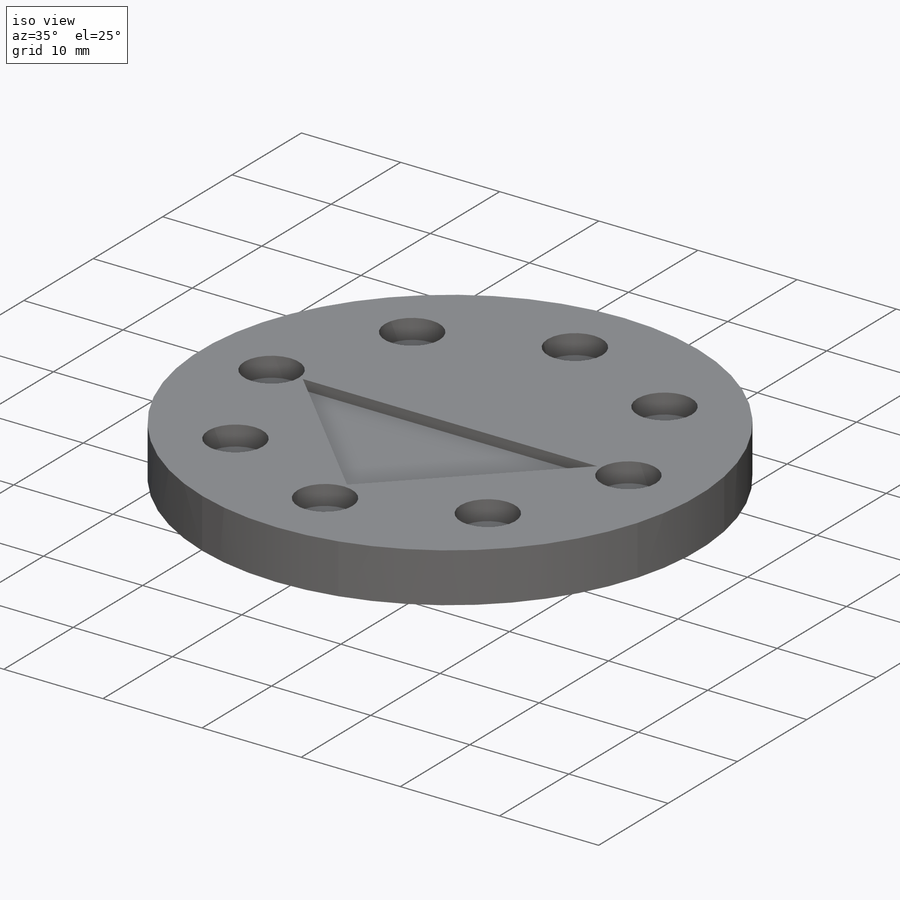
[diagram: iso view]
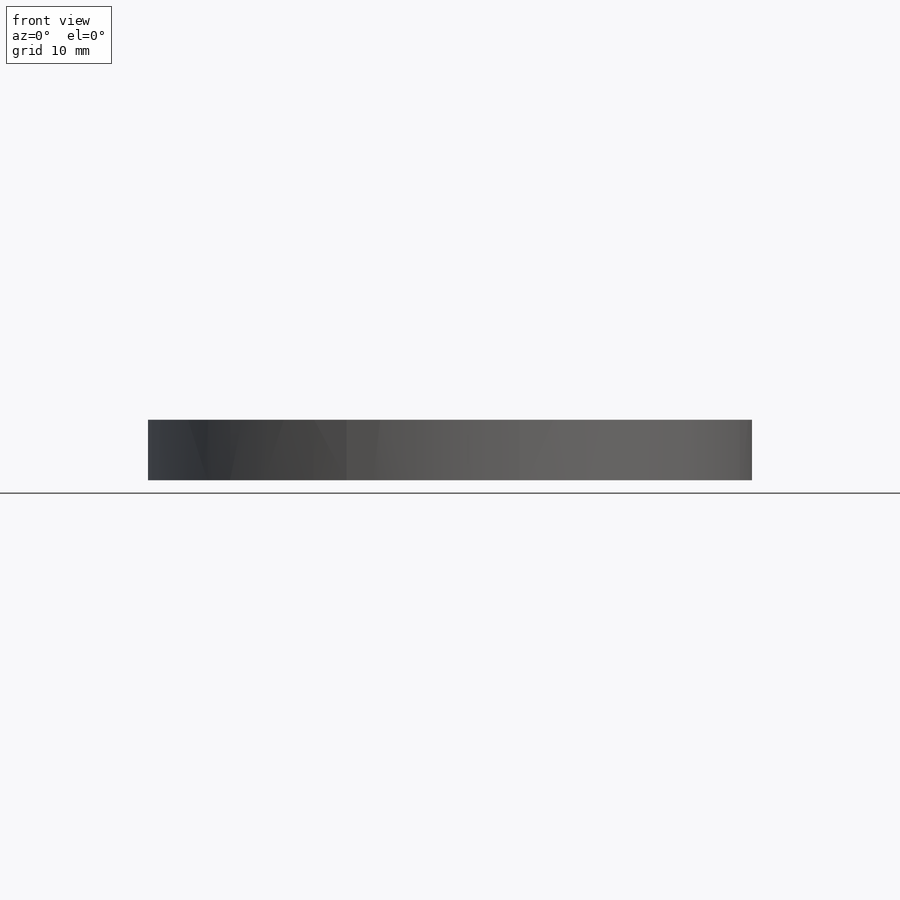
[diagram: front view]
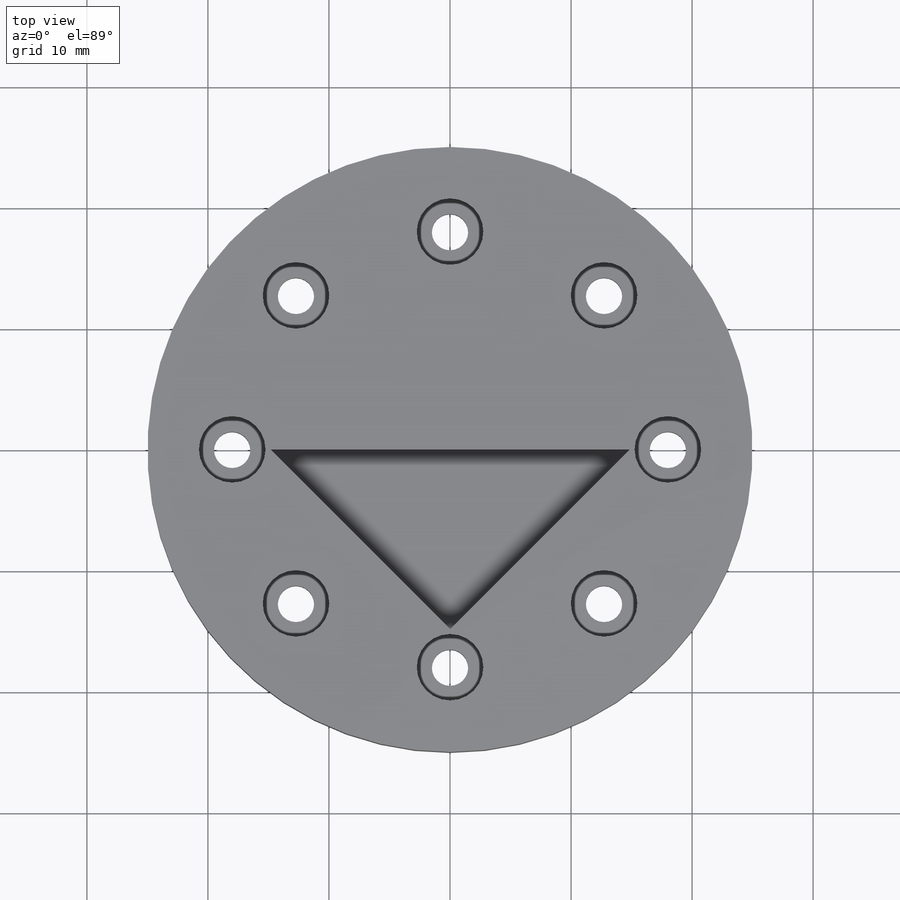
[diagram: top view]
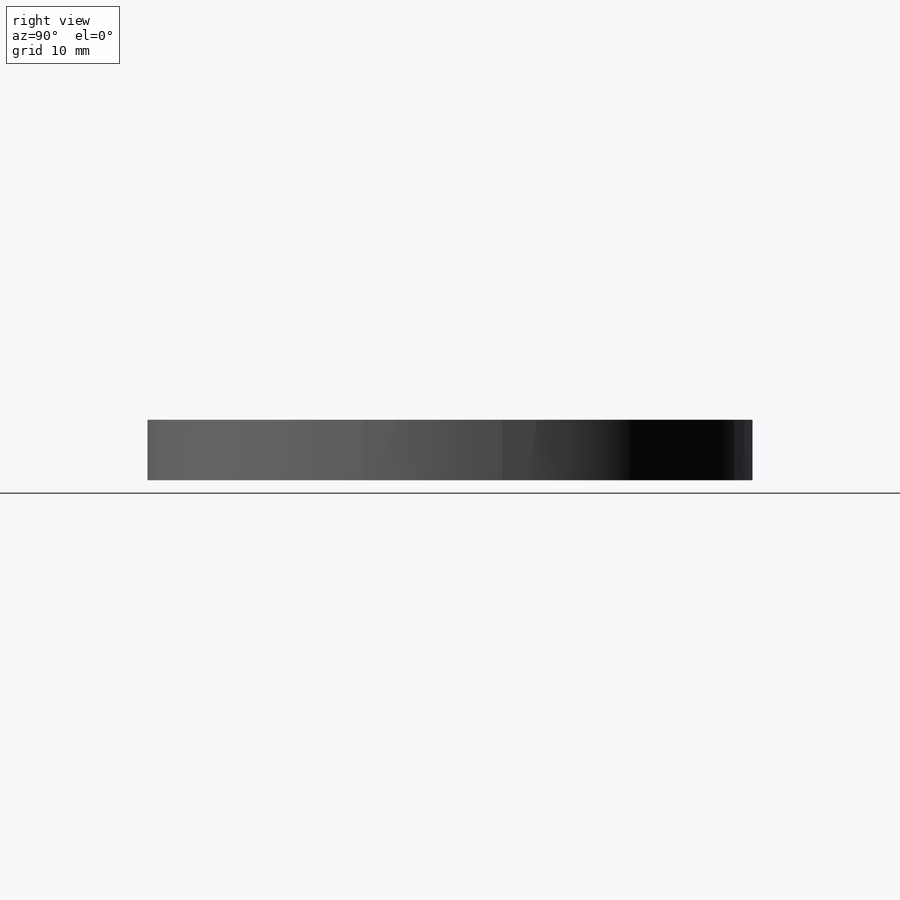
[diagram: right view]
SOLIDWORKS PART (.sldprt)
format: sldprt  version: not decoded by parser v0  size: 311,296 bytes
history: native  units: mm
features: sketch x9, extrude x5, cut_extrude x4, plane x3, pattern_circular x3, material x1 (+9 scaffold rows collapsed)
feature tree (34):
  scaffold x9  (default folders/planes/origin — collapsed)
  material  "材质 <未指定>"
  plane  "前视基准面"
  plane  "上视基准面"
  plane  "右视基准面"
  sketch  "草图1"  dims[D1=50.0mm D4=3.0mm D2=18.0mm D3=18.0mm]
  extrude  "凸台-拉伸2"  Depth=1mm
  sketch  "草图2"  dims[D2=3.0mm D1=18.0mm]
  cut_extrude  "切除-拉伸1"  Depth=1mm
  pattern_circular  "阵列(圆周)1"  Count=8 Angle=360deg
  sketch  "草图3"  dims[c1.D1=21.5mm c1.D2=~14.620838mm c2.D2=45.0deg c2.D3=21.5mm c2.D4=~15.202796mm c3.D4=45.0deg c4.D4=36.0mm]
  cut_extrude  "切除-拉伸2"  Depth=1mm
  sketch  "草图4"  dims[D1=0.25mm]
  extrude  "凸台-拉伸3"  Depth=1mm
  sketch  "草图5"
  extrude  "凸台-拉伸5"  Depth=2mm
  sketch  "草图6"  dims[D1=3.0mm]
  cut_extrude  "切除-拉伸3"  Depth=2mm
  pattern_circular  "阵列(圆周)2"  Count=8 Angle=360deg
  sketch  "草图7"
  sketch  "草图8"  dims[D1=5.5mm]
  extrude  "凸台-拉伸6"  Depth=2mm
  cut_extrude  "切除-拉伸4"  Depth=2mm
  pattern_circular  "阵列(圆周)3"  Count=8 Angle=360deg
  sketch  "草图9"
  extrude  "凸台-拉伸8"  Depth=2mm
decode coverage: 18 of 21 modeling features carry decoded parameters
note: ~ marks probable driven/reference dimensions
note: suppression state not decoded; provenance and decode notes live in map.json
